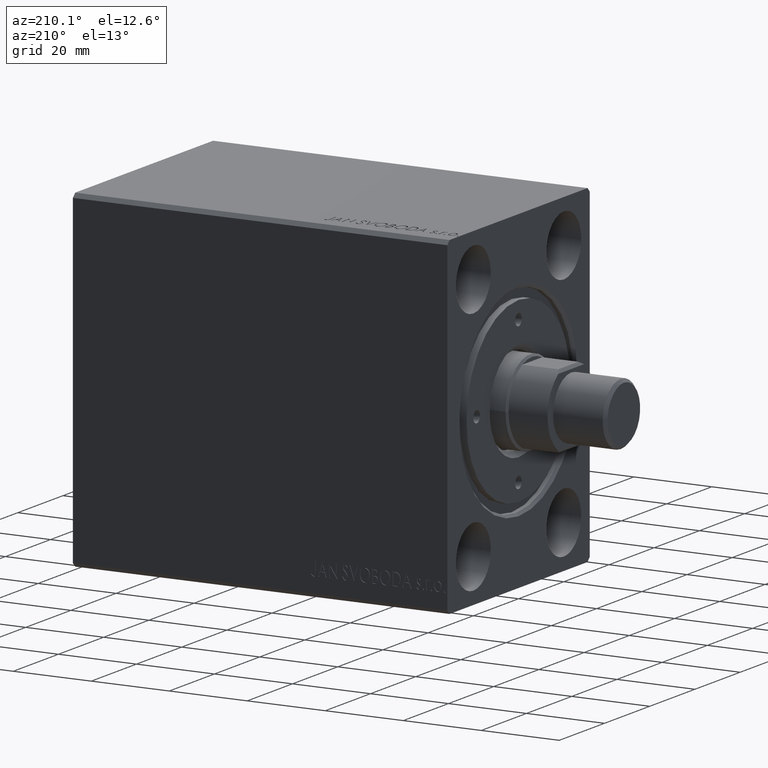
[diagram: clean part render]
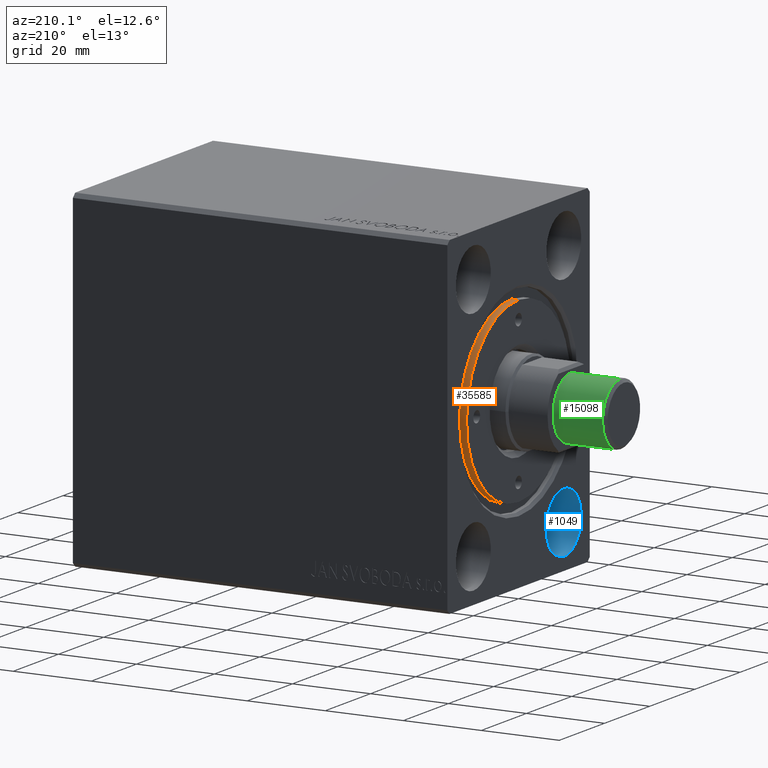
[diagram: same view with three faces highlighted in distinct colors, each labeled with its STEP entity id]
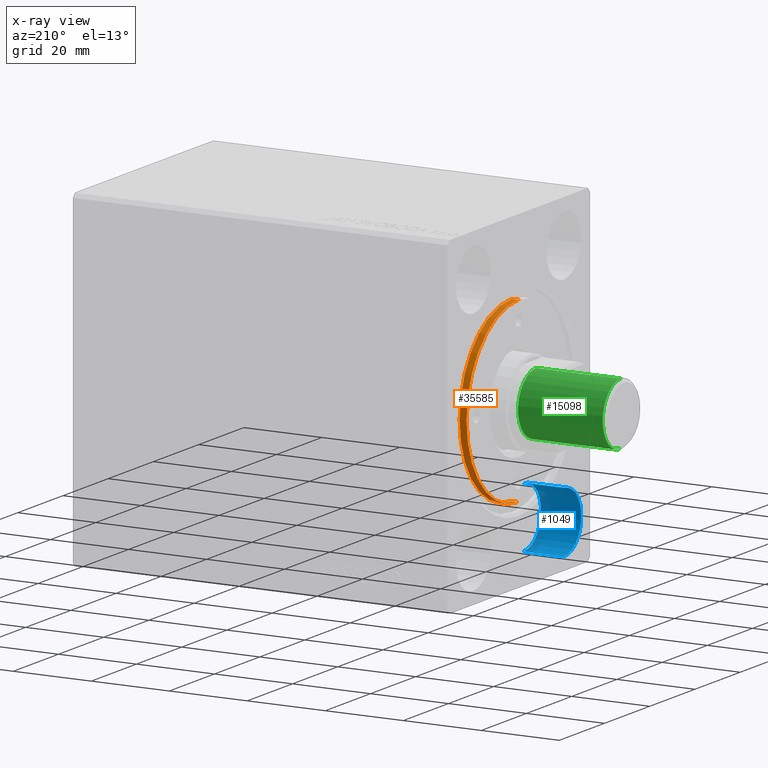
[diagram: x-ray of the same camera — body ghosted, the three highlighted faces saturated]
A machine part, auxiliary view with three faces highlighted in distinct colors.
The next image is the same camera in x-ray (body ghosted, the three faces saturated) — at least one of them is partly hidden behind the body in this view.
Their STEP definitions:

[orange] entity #35585 — the highlighted cylindrical surface (partial cylindrical patch) has radius 23 mm, axis along (1, -0, -0).
#1 = CIRCLE ( 'NONE', #2884, 23.00000000000000000 ) ;
#372 = CARTESIAN_POINT ( 'NONE',  ( 0.000000000000000000, 0.000000000000000000, 10.00000000000000000 ) ) ;
#1701 = CARTESIAN_POINT ( 'NONE',  ( -23.00000000000000000, 0.000000000000000000, 11.79999999999999893 ) ) ;
#2243 = EDGE_CURVE ( 'NONE', #39479, #32694, #44449, .T. ) ;
#2884 = AXIS2_PLACEMENT_3D ( 'NONE', #372, #17668, #18114 ) ;
#3260 = CARTESIAN_POINT ( 'NONE',  ( 0.000000000000000000, 0.000000000000000000, 11.79999999999999893 ) ) ;
#3744 = VECTOR ( 'NONE', #30557, 1000.000000000000000 ) ;
#4521 = DIRECTION ( 'NONE',  ( -0.000000000000000000, -0.000000000000000000, -1.000000000000000000 ) ) ;
#7428 = ORIENTED_EDGE ( 'NONE', *, *, #11447, .T. ) ;
#8169 = VERTEX_POINT ( 'NONE', #38705 ) ;
#8577 = DIRECTION ( 'NONE',  ( -0.000000000000000000, -0.000000000000000000, -1.000000000000000000 ) ) ;
#8584 = EDGE_LOOP ( 'NONE', ( #42942, #11472, #7428, #22302 ) ) ;
#9938 = EDGE_CURVE ( 'NONE', #32694, #22934, #41867, .T. ) ;
#10446 = DIRECTION ( 'NONE',  ( 0.000000000000000000, 0.000000000000000000, 1.000000000000000000 ) ) ;
#11447 = EDGE_CURVE ( 'NONE', #8169, #22934, #1, .T. ) ;
#11472 = ORIENTED_EDGE ( 'NONE', *, *, #20756, .T. ) ;
#14105 = LINE ( 'NONE', #34157, #3744 ) ;
#14317 = VECTOR ( 'NONE', #4521, 1000.000000000000000 ) ;
#15330 = FACE_OUTER_BOUND ( 'NONE', #8584, .T. ) ;
#17668 = DIRECTION ( 'NONE',  ( 0.000000000000000000, 0.000000000000000000, 1.000000000000000000 ) ) ;
#18114 = DIRECTION ( 'NONE',  ( 1.000000000000000000, 0.000000000000000000, 0.000000000000000000 ) ) ;
#18912 = DIRECTION ( 'NONE',  ( -1.000000000000000000, 0.000000000000000000, 0.000000000000000000 ) ) ;
#20756 = EDGE_CURVE ( 'NONE', #39479, #8169, #14105, .T. ) ;
#21608 = CARTESIAN_POINT ( 'NONE',  ( -23.00000000000000000, 0.000000000000000000, 11.79999999999999893 ) ) ;
#22302 = ORIENTED_EDGE ( 'NONE', *, *, #9938, .F. ) ;
#22934 = VERTEX_POINT ( 'NONE', #42800 ) ;
#24758 = AXIS2_PLACEMENT_3D ( 'NONE', #29067, #8577, #18912 ) ;
#25673 = CYLINDRICAL_SURFACE ( 'NONE', #24758, 23.00000000000000000 ) ;
#27320 = DIRECTION ( 'NONE',  ( 1.000000000000000000, 0.000000000000000000, 0.000000000000000000 ) ) ;
#28657 = AXIS2_PLACEMENT_3D ( 'NONE', #3260, #10446, #27320 ) ;
#29067 = CARTESIAN_POINT ( 'NONE',  ( 0.000000000000000000, 0.000000000000000000, 11.79999999999999893 ) ) ;
#30557 = DIRECTION ( 'NONE',  ( -0.000000000000000000, -0.000000000000000000, -1.000000000000000000 ) ) ;
#32694 = VERTEX_POINT ( 'NONE', #1701 ) ;
#34157 = CARTESIAN_POINT ( 'NONE',  ( 23.00000000000000000, 2.816687638038912352E-15, 11.79999999999999893 ) ) ;
#35585 = ADVANCED_FACE ( 'NONE', ( #15330 ), #25673, .T. ) ;
#38705 = CARTESIAN_POINT ( 'NONE',  ( 23.00000000000000000, 2.816687638038912352E-15, 10.00000000000000000 ) ) ;
#39479 = VERTEX_POINT ( 'NONE', #41396 ) ;
#41396 = CARTESIAN_POINT ( 'NONE',  ( 23.00000000000000000, 2.816687638038912352E-15, 11.79999999999999893 ) ) ;
#41867 = LINE ( 'NONE', #21608, #14317 ) ;
#42800 = CARTESIAN_POINT ( 'NONE',  ( -23.00000000000000000, 0.000000000000000000, 10.00000000000000000 ) ) ;
#42942 = ORIENTED_EDGE ( 'NONE', *, *, #2243, .F. ) ;
#44449 = CIRCLE ( 'NONE', #28657, 23.00000000000000000 ) ;

[blue] entity #1049 — the highlighted cylindrical surface (edge-blend (fillet) strip) has radius 7.75 mm, axis along (-1, -0, -0).
#1049 = ADVANCED_FACE ( 'NONE', ( #14481 ), #38341, .F. ) ;
#2146 = DIRECTION ( 'NONE',  ( 1.000000000000000000, -0.000000000000000000, -0.000000000000000000 ) ) ;
#2367 = DIRECTION ( 'NONE',  ( 0.000000000000000000, 0.000000000000000000, -1.000000000000000000 ) ) ;
#4790 = CIRCLE ( 'NONE', #19119, 7.750000000000000000 ) ;
#5707 = CARTESIAN_POINT ( 'NONE',  ( 10.33000000000000007, -19.99999999999999645, -39.24999999999998579 ) ) ;
#5718 = ORIENTED_EDGE ( 'NONE', *, *, #34178, .T. ) ;
#8789 = LINE ( 'NONE', #18469, #34091 ) ;
#10700 = LINE ( 'NONE', #29297, #31972 ) ;
#11241 = DIRECTION ( 'NONE',  ( 1.000000000000000000, -0.000000000000000000, -0.000000000000000000 ) ) ;
#12479 = CARTESIAN_POINT ( 'NONE',  ( 0.000000000000000000, -19.99999999999999645, -23.74999999999998579 ) ) ;
#14262 = CARTESIAN_POINT ( 'NONE',  ( 10.33000000000000007, -19.99999999999999645, -31.49999999999998579 ) ) ;
#14481 = FACE_OUTER_BOUND ( 'NONE', #36926, .T. ) ;
#14847 = VERTEX_POINT ( 'NONE', #16749 ) ;
#16749 = CARTESIAN_POINT ( 'NONE',  ( 10.33000000000000007, -19.99999999999999645, -23.74999999999998579 ) ) ;
#17474 = AXIS2_PLACEMENT_3D ( 'NONE', #21372, #11241, #18643 ) ;
#18288 = DIRECTION ( 'NONE',  ( 0.000000000000000000, 0.000000000000000000, 1.000000000000000000 ) ) ;
#18469 = CARTESIAN_POINT ( 'NONE',  ( 10.33000000000000007, -19.99999999999999645, -39.24999999999998579 ) ) ;
#18643 = DIRECTION ( 'NONE',  ( 0.000000000000000000, 0.000000000000000000, -1.000000000000000000 ) ) ;
#18703 = DIRECTION ( 'NONE',  ( -1.000000000000000000, -0.000000000000000000, -0.000000000000000000 ) ) ;
#19119 = AXIS2_PLACEMENT_3D ( 'NONE', #25765, #2146, #2367 ) ;
#20114 = VERTEX_POINT ( 'NONE', #12479 ) ;
#21372 = CARTESIAN_POINT ( 'NONE',  ( 0.000000000000000000, -19.99999999999999645, -31.49999999999998579 ) ) ;
#24007 = EDGE_CURVE ( 'NONE', #20114, #24945, #36885, .T. ) ;
#24945 = VERTEX_POINT ( 'NONE', #25411 ) ;
#25009 = AXIS2_PLACEMENT_3D ( 'NONE', #14262, #35194, #18288 ) ;
#25411 = CARTESIAN_POINT ( 'NONE',  ( 0.000000000000000000, -19.99999999999999645, -39.24999999999998579 ) ) ;
#25765 = CARTESIAN_POINT ( 'NONE',  ( 10.33000000000000007, -19.99999999999999645, -31.49999999999998579 ) ) ;
#28400 = DIRECTION ( 'NONE',  ( -1.000000000000000000, -0.000000000000000000, -0.000000000000000000 ) ) ;
#28727 = EDGE_CURVE ( 'NONE', #14847, #35360, #4790, .T. ) ;
#29297 = CARTESIAN_POINT ( 'NONE',  ( 10.33000000000000007, -19.99999999999999645, -23.74999999999998579 ) ) ;
#31882 = ORIENTED_EDGE ( 'NONE', *, *, #36304, .F. ) ;
#31972 = VECTOR ( 'NONE', #18703, 1000.000000000000000 ) ;
#34091 = VECTOR ( 'NONE', #28400, 1000.000000000000000 ) ;
#34178 = EDGE_CURVE ( 'NONE', #35360, #24945, #8789, .T. ) ;
#35194 = DIRECTION ( 'NONE',  ( -1.000000000000000000, -0.000000000000000000, -0.000000000000000000 ) ) ;
#35360 = VERTEX_POINT ( 'NONE', #5707 ) ;
#36304 = EDGE_CURVE ( 'NONE', #14847, #20114, #10700, .T. ) ;
#36814 = ORIENTED_EDGE ( 'NONE', *, *, #28727, .T. ) ;
#36885 = CIRCLE ( 'NONE', #17474, 7.750000000000000000 ) ;
#36926 = EDGE_LOOP ( 'NONE', ( #36814, #5718, #44422, #31882 ) ) ;
#38341 = CYLINDRICAL_SURFACE ( 'NONE', #25009, 7.750000000000000000 ) ;
#44422 = ORIENTED_EDGE ( 'NONE', *, *, #24007, .F. ) ;

[green] entity #15098 — the highlighted cylindrical surface (edge-blend (fillet) strip) has radius 8 mm, axis along (-1, -0, 0).
#20 = CARTESIAN_POINT ( 'NONE',  ( 0.000000000000000000, 0.000000000000000000, 0.8000000000000055955 ) ) ;
#1354 = DIRECTION ( 'NONE',  ( -0.000000000000000000, -0.000000000000000000, -1.000000000000000000 ) ) ;
#3093 = ORIENTED_EDGE ( 'NONE', *, *, #15555, .T. ) ;
#3548 = ORIENTED_EDGE ( 'NONE', *, *, #15750, .F. ) ;
#4428 = VECTOR ( 'NONE', #1354, 1000.000000000000000 ) ;
#6483 = CARTESIAN_POINT ( 'NONE',  ( 8.000000000000000000, 9.797174393178823685E-16, 22.50000000000000000 ) ) ;
#6834 = CIRCLE ( 'NONE', #34162, 8.000000000000000000 ) ;
#7304 = AXIS2_PLACEMENT_3D ( 'NONE', #20, #10583, #30412 ) ;
#8008 = DIRECTION ( 'NONE',  ( 0.000000000000000000, 0.000000000000000000, 1.000000000000000000 ) ) ;
#8175 = DIRECTION ( 'NONE',  ( -1.000000000000000000, 0.000000000000000000, 0.000000000000000000 ) ) ;
#8307 = LINE ( 'NONE', #42510, #4428 ) ;
#10583 = DIRECTION ( 'NONE',  ( -0.000000000000000000, -0.000000000000000000, 1.000000000000000000 ) ) ;
#11770 = DIRECTION ( 'NONE',  ( -0.000000000000000000, -0.000000000000000000, -1.000000000000000000 ) ) ;
#12427 = CARTESIAN_POINT ( 'NONE',  ( 0.000000000000000000, 0.000000000000000000, 22.50000000000000000 ) ) ;
#14072 = CARTESIAN_POINT ( 'NONE',  ( -8.000000000000000000, 0.000000000000000000, 0.8000000000000055955 ) ) ;
#15098 = ADVANCED_FACE ( 'NONE', ( #39670 ), #15811, .T. ) ;
#15440 = EDGE_LOOP ( 'NONE', ( #25028, #16265, #3093, #3548 ) ) ;
#15555 = EDGE_CURVE ( 'NONE', #42442, #36330, #26702, .T. ) ;
#15750 = EDGE_CURVE ( 'NONE', #37705, #36330, #8307, .T. ) ;
#15811 = CYLINDRICAL_SURFACE ( 'NONE', #27382, 8.000000000000000000 ) ;
#15934 = VERTEX_POINT ( 'NONE', #18104 ) ;
#16265 = ORIENTED_EDGE ( 'NONE', *, *, #43956, .T. ) ;
#18104 = CARTESIAN_POINT ( 'NONE',  ( 8.000000000000000000, 9.797174393178823685E-16, 22.50000000000000000 ) ) ;
#20635 = VECTOR ( 'NONE', #26278, 1000.000000000000000 ) ;
#21105 = CARTESIAN_POINT ( 'NONE',  ( -8.000000000000000000, 0.000000000000000000, 22.50000000000000000 ) ) ;
#25028 = ORIENTED_EDGE ( 'NONE', *, *, #33449, .F. ) ;
#26278 = DIRECTION ( 'NONE',  ( -0.000000000000000000, -0.000000000000000000, -1.000000000000000000 ) ) ;
#26702 = CIRCLE ( 'NONE', #7304, 8.000000000000000000 ) ;
#27382 = AXIS2_PLACEMENT_3D ( 'NONE', #12427, #11770, #8175 ) ;
#30412 = DIRECTION ( 'NONE',  ( 1.000000000000000000, 0.000000000000000000, 0.000000000000000000 ) ) ;
#31217 = CARTESIAN_POINT ( 'NONE',  ( 0.000000000000000000, 0.000000000000000000, 22.50000000000000000 ) ) ;
#32346 = CARTESIAN_POINT ( 'NONE',  ( 8.000000000000000000, 9.797174393178823685E-16, 0.8000000000000055955 ) ) ;
#33449 = EDGE_CURVE ( 'NONE', #15934, #37705, #6834, .T. ) ;
#34162 = AXIS2_PLACEMENT_3D ( 'NONE', #31217, #8008, #35477 ) ;
#35477 = DIRECTION ( 'NONE',  ( 1.000000000000000000, 0.000000000000000000, 0.000000000000000000 ) ) ;
#36330 = VERTEX_POINT ( 'NONE', #14072 ) ;
#37093 = LINE ( 'NONE', #6483, #20635 ) ;
#37705 = VERTEX_POINT ( 'NONE', #21105 ) ;
#39670 = FACE_OUTER_BOUND ( 'NONE', #15440, .T. ) ;
#42442 = VERTEX_POINT ( 'NONE', #32346 ) ;
#42510 = CARTESIAN_POINT ( 'NONE',  ( -8.000000000000000000, 0.000000000000000000, 22.50000000000000000 ) ) ;
#43956 = EDGE_CURVE ( 'NONE', #15934, #42442, #37093, .T. ) ;